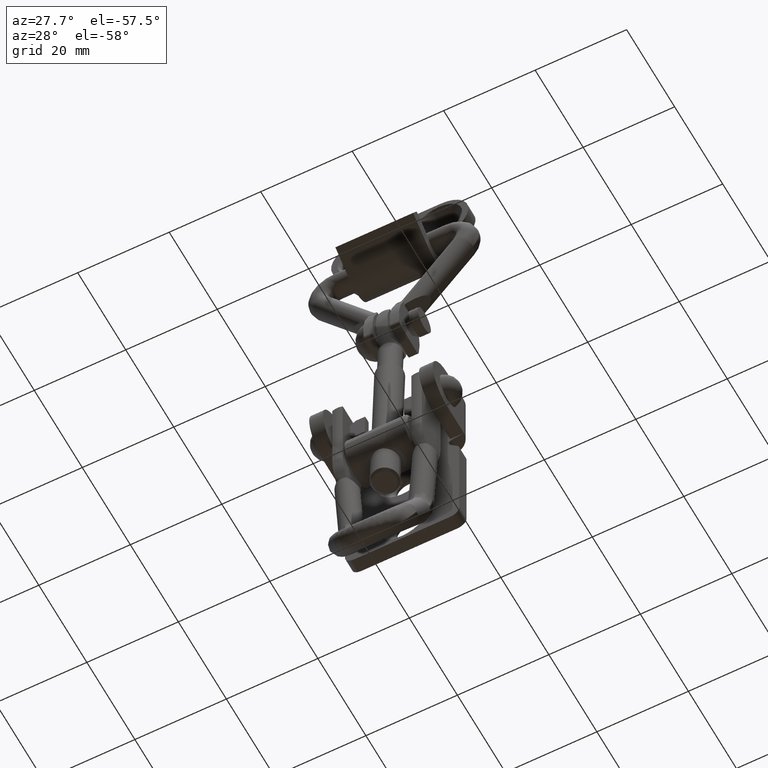
[diagram: clean part render]
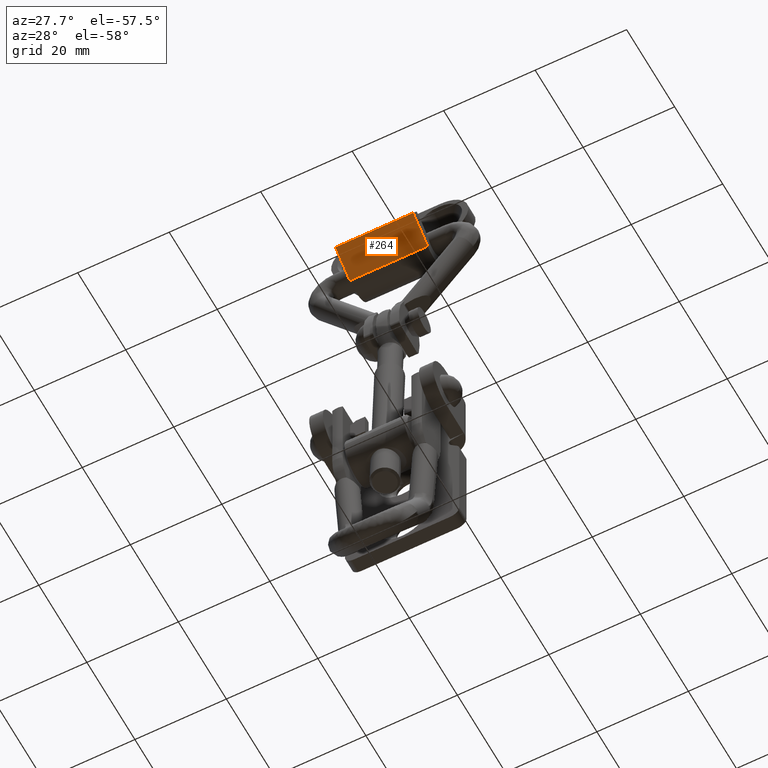
[diagram: same view with one face highlighted and labeled with its STEP entity id]
A machine part, auxiliary view. The second image highlights one B-rep face of the part: STEP entity #264.
In plain terms, the highlighted planar face has unit normal (0, 0.5117, 0.8592).
Its self-contained STEP definition (entity closure, byte-faithful):
#264=ADVANCED_FACE('',(#525),#524,.F.);
#524=PLANE('',#2760);
#525=FACE_OUTER_BOUND('',#2761,.T.);
#2757=CARTESIAN_POINT('',(-1.02000000000E+01,-3.95409323109E+00,-1.56557483553E+01));
#2758=DIRECTION('',(0.00000000000E+00,5.11653314744E-01,8.59191995721E-01));
#2759=DIRECTION('',(0.00000000000E+00,-8.59191995721E-01,5.11653314744E-01));
#2760=AXIS2_PLACEMENT_3D('',#2757,#2758,#2759);
#2761=EDGE_LOOP('',(#4564,#4565,#4566,#4567));
#4564=ORIENTED_EDGE('',*,*,#5633,.T.);
#4565=ORIENTED_EDGE('',*,*,#5634,.F.);
#4566=ORIENTED_EDGE('',*,*,#5635,.F.);
#4567=ORIENTED_EDGE('',*,*,#5631,.T.);
#5631=EDGE_CURVE('',#6279,#6272,#6280,.T.);
#5633=EDGE_CURVE('',#6272,#6292,#6293,.T.);
#5634=EDGE_CURVE('',#6299,#6292,#6300,.T.);
#5635=EDGE_CURVE('',#6279,#6299,#6306,.T.);
#6272=VERTEX_POINT('',#9779);
#6279=VERTEX_POINT('',#9783);
#6280=LINE('',#9784,#9785);
#6292=VERTEX_POINT('',#9790);
#6293=LINE('',#9791,#9792);
#6299=VERTEX_POINT('',#9794);
#6300=LINE('',#9795,#9796);
#6306=LINE('',#9798,#9799);
#9779=CARTESIAN_POINT('',(-8.50000000000E+00,-1.06000000000E+01,-1.16980762114E+01));
#9783=CARTESIAN_POINT('',(8.50000000000E+00,-1.06000000000E+01,-1.16980762114E+01));
#9784=CARTESIAN_POINT('',(8.50000000000E+00,-1.06000000000E+01,-1.16980762114E+01));
#9785=VECTOR('',#9786,1.70000000000E+01);
#9786=DIRECTION('',(-1.00000000000E+00,0.00000000000E+00,0.00000000000E+00));
#9790=CARTESIAN_POINT('',(-8.50000000000E+00,-4.55826657372E+00,-1.52959599786E+01));
#9791=CARTESIAN_POINT('',(-8.50000000000E+00,-1.06000000000E+01,-1.16980762114E+01));
#9792=VECTOR('',#9793,7.03187815572E+00);
#9793=DIRECTION('',(0.00000000000E+00,8.59191995721E-01,-5.11653314744E-01));
#9794=CARTESIAN_POINT('',(8.50000000000E+00,-4.55826657372E+00,-1.52959599786E+01));
#9795=CARTESIAN_POINT('',(8.50000000000E+00,-4.55826657372E+00,-1.52959599786E+01));
#9796=VECTOR('',#9797,1.70000000000E+01);
#9797=DIRECTION('',(-1.00000000000E+00,0.00000000000E+00,0.00000000000E+00));
#9798=CARTESIAN_POINT('',(8.50000000000E+00,-1.06000000000E+01,-1.16980762114E+01));
#9799=VECTOR('',#9800,7.03187815572E+00);
#9800=DIRECTION('',(0.00000000000E+00,8.59191995721E-01,-5.11653314744E-01));